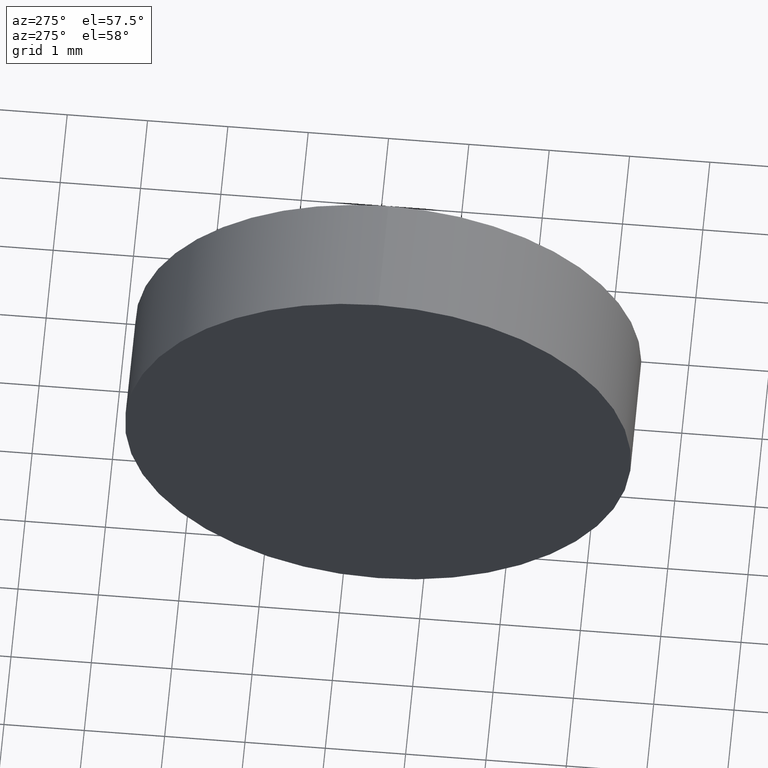
[diagram: clean part render]
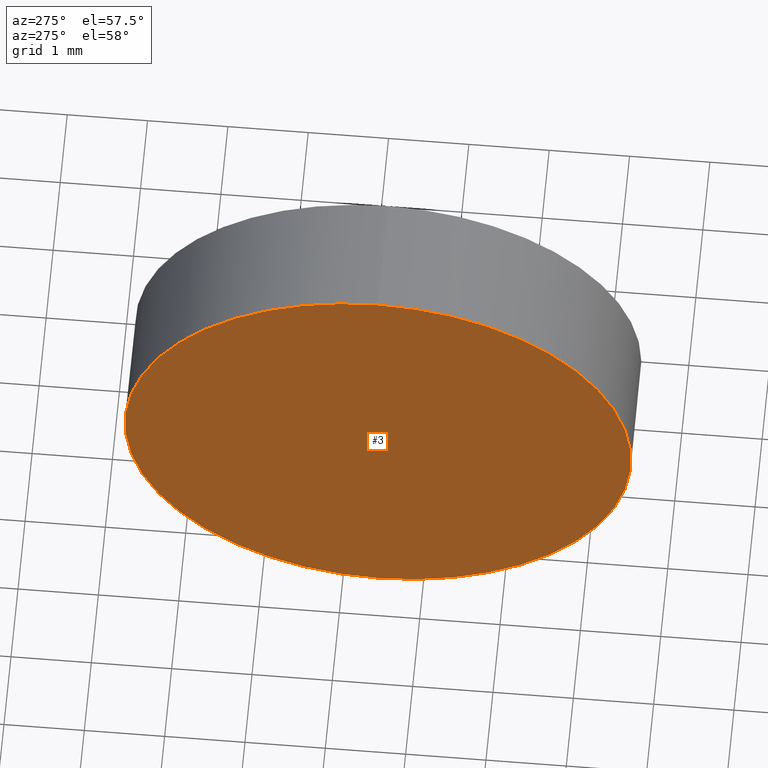
[diagram: same view with one face highlighted and labeled with its STEP entity id]
A machine part, auxiliary view. The second image highlights one B-rep face of the part: STEP entity #3.
In plain terms, the highlighted planar face has unit normal (1, 0, 0).
Its self-contained STEP definition (entity closure, byte-faithful):
#3 = ADVANCED_FACE ( 'NONE', ( #70 ), #97, .F. ) ;
#11 = DIRECTION ( 'NONE',  ( 0.0000000000000000000, 0.0000000000000000000, 1.000000000000000000 ) ) ;
#24 = ORIENTED_EDGE ( 'NONE', *, *, #91, .T. ) ;
#33 = EDGE_LOOP ( 'NONE', ( #41, #24 ) ) ;
#37 = CARTESIAN_POINT ( 'NONE',  ( 818.4628674675299200, 336.5592304436489700, 0.0000000000000000000 ) ) ;
#41 = ORIENTED_EDGE ( 'NONE', *, *, #176, .T. ) ;
#45 = DIRECTION ( 'NONE',  ( 0.0000000000000000000, 0.0000000000000000000, -1.000000000000000000 ) ) ;
#59 = CIRCLE ( 'NONE', #107, 3.149999999999875100 ) ;
#70 = FACE_OUTER_BOUND ( 'NONE', #33, .T. ) ;
#71 = DIRECTION ( 'NONE',  ( 1.000000000000000000, 0.0000000000000000000, 0.0000000000000000000 ) ) ;
#75 = DIRECTION ( 'NONE',  ( -1.000000000000000000, -0.0000000000000000000, -0.0000000000000000000 ) ) ;
#83 = CARTESIAN_POINT ( 'NONE',  ( 818.4628674675299200, 336.5592304436489700, -3.149999999999875100 ) ) ;
#91 = EDGE_CURVE ( 'NONE', #100, #130, #59, .T. ) ;
#97 = PLANE ( 'NONE',  #111 ) ;
#100 = VERTEX_POINT ( 'NONE', #83 ) ;
#101 = CARTESIAN_POINT ( 'NONE',  ( 818.4628674675299200, 336.5592304436488600, 0.0000000000000000000 ) ) ;
#106 = DIRECTION ( 'NONE',  ( -1.000000000000000000, -0.0000000000000000000, -0.0000000000000000000 ) ) ;
#107 = AXIS2_PLACEMENT_3D ( 'NONE', #37, #106, #11 ) ;
#111 = AXIS2_PLACEMENT_3D ( 'NONE', #101, #71, #45 ) ;
#127 = CIRCLE ( 'NONE', #170, 3.149999999999875100 ) ;
#130 = VERTEX_POINT ( 'NONE', #155 ) ;
#139 = DIRECTION ( 'NONE',  ( 0.0000000000000000000, 0.0000000000000000000, 1.000000000000000000 ) ) ;
#155 = CARTESIAN_POINT ( 'NONE',  ( 818.4628674675299200, 336.5592304436489700, 3.149999999999875100 ) ) ;
#168 = CARTESIAN_POINT ( 'NONE',  ( 818.4628674675299200, 336.5592304436489700, 0.0000000000000000000 ) ) ;
#170 = AXIS2_PLACEMENT_3D ( 'NONE', #168, #75, #139 ) ;
#176 = EDGE_CURVE ( 'NONE', #130, #100, #127, .T. ) ;